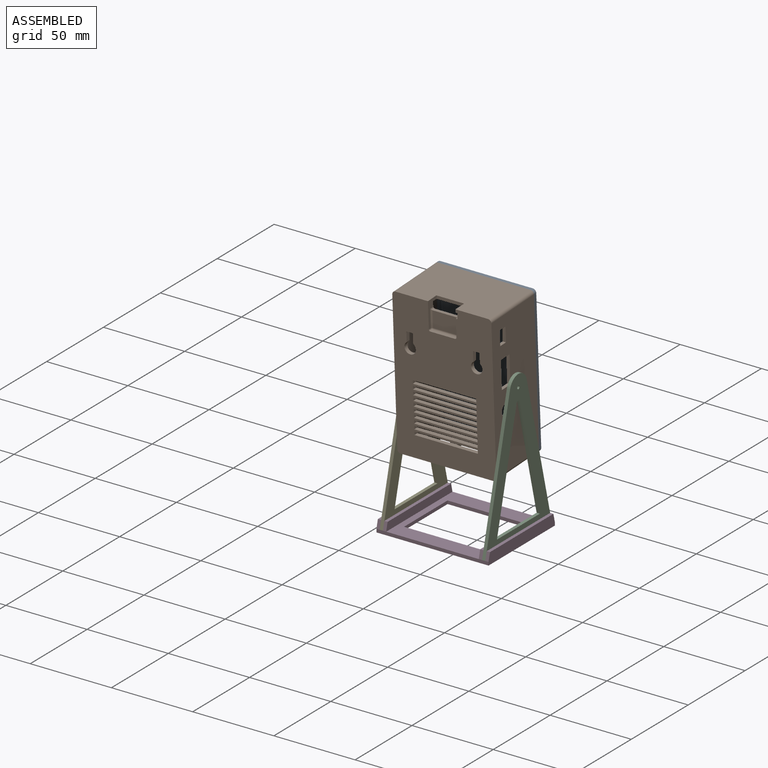
[diagram: assembled view]
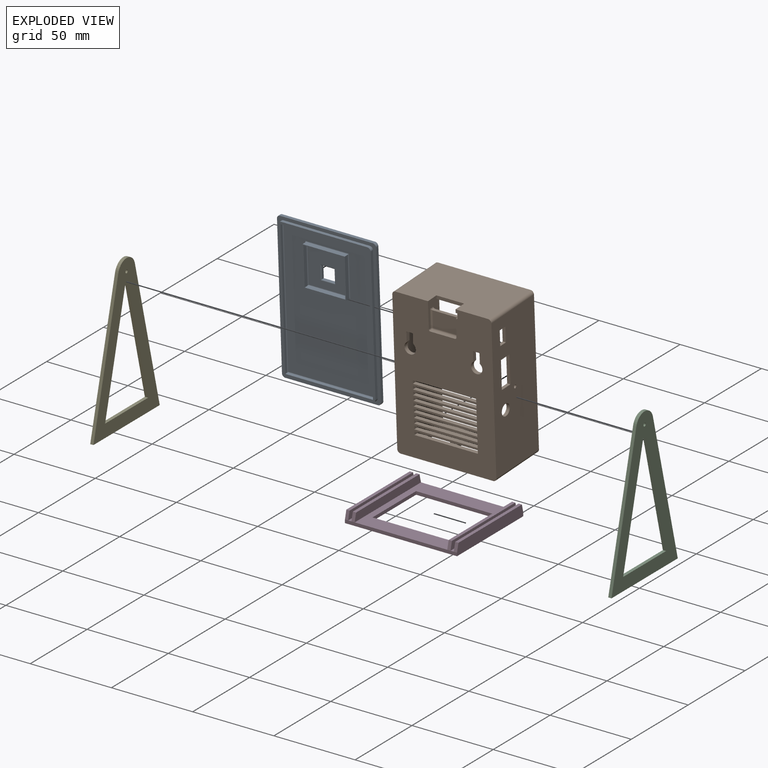
[diagram: exploded view]
GUIDED TOUR — MATED ASSEMBLY (Onshape document 2ee010996fcdbbe0177ab9b4, AutoMate assembly 2ee010996fcdbbe0177ab9b4_f6006d8d229a55cab458e981_14f6361f8441240540741fac_default)

This assembly has 5 components, labeled P0..P4 below (a component is one placed occurrence of a part; the same part can appear more than once), held together by 4 mates. A mate is a constraint between two components; its type names the relative motion it leaves free:
  FASTENED — locks the two components together rigidly (no relative motion),
  REVOLUTE — leaves rotation about the listed axis free (a hinge).
Axis/direction vectors are unit vectors and 'through' points are millimeter coordinates, both in the assembly's world frame.

MATES
  1. REVOLUTE "Revolute 1": P1 <-> P4, axis (-1.000, 0.000, 0.000) through (110.18, -246.69, 141.87) mm
  2. FASTENED "Fastened 3": P2 <-> P3, direction (1.000, 0.000, 0.000) through (172.18, -275.83, 56.39) mm
  3. FASTENED "Fastened 1": P1 <-> P0, direction (-1.000, 0.000, 0.000) through (140.68, -230.16, 186.75) mm
  4. FASTENED "Fastened 2": P3 <-> P4, direction (1.000, 0.000, 0.000) through (109.18, -275.83, 56.39) mm

ASSEMBLY ORDER
  1. P1 — the base component [order verified]
  2. P0 [order verified]
  3. P3 [order verified]
  4. P2 [order verified]
  5. P4 [order verified]
Order-tag legend:
  [order verified] — this step's position reverses a verified removal order: the component was checked to insert without passing through the ones already placed.

Of the 5 components, 1 carries the full construction recipe — the FeatureScript program that regenerates the part's solid from scratch; the rest are supplied as boundary geometry only.
Each toured component is shown spotlighted twice — in the assembled view, then in the exploded view, where a leader line traces a displaced component back to its assembled socket (saturated green if recipe-attached, orange if geometry-only; every other component desaturated gray) — followed by its recipe or geometry summary and the mates that hold it.
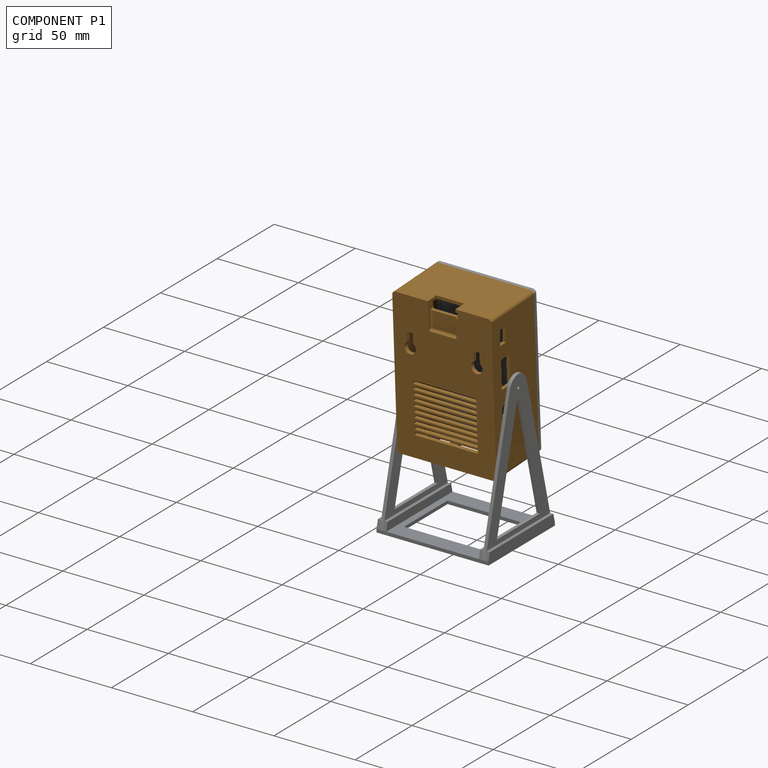
[diagram: component P1 — assembled]
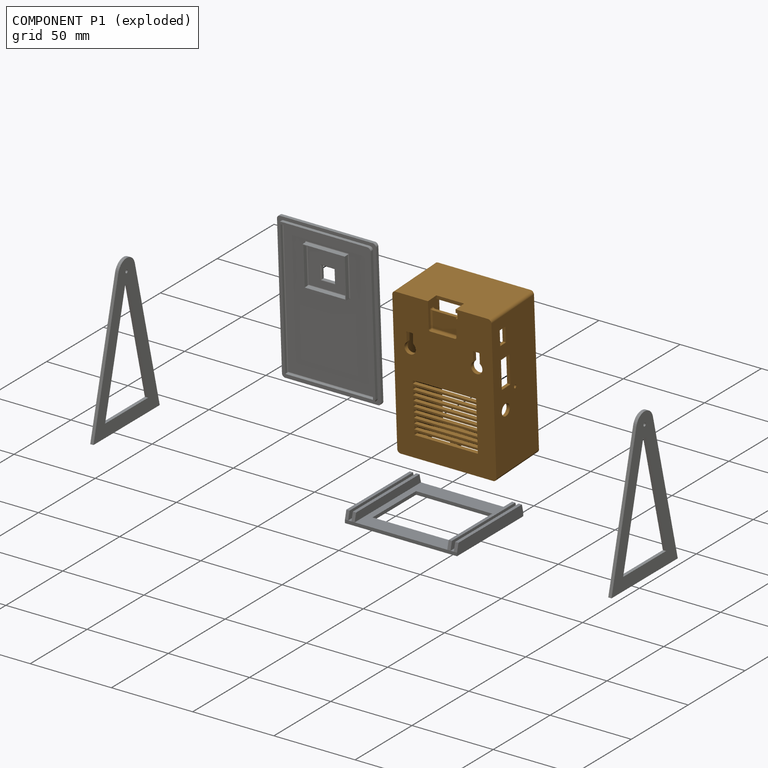
[diagram: component P1 — exploded]
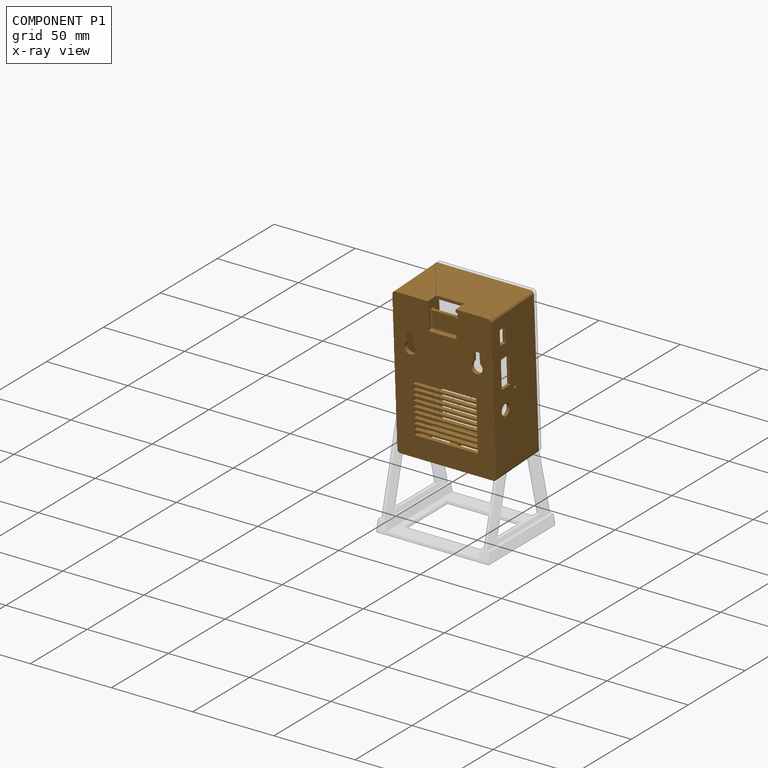
[diagram: component P1 — x-ray view]
COMPONENT P1 — geometry summary (no construction recipe available for this part):
  bounding box: 92.0 x 61.0 x 37.5 mm
  B-rep topology: 1 solid, 119 faces, 692 edges
  volume: 30431 mm^3 (14% of its bounding box)
Held by: REVOLUTE mate "Revolute 1" to P4; FASTENED mate "Fastened 1" to P0.
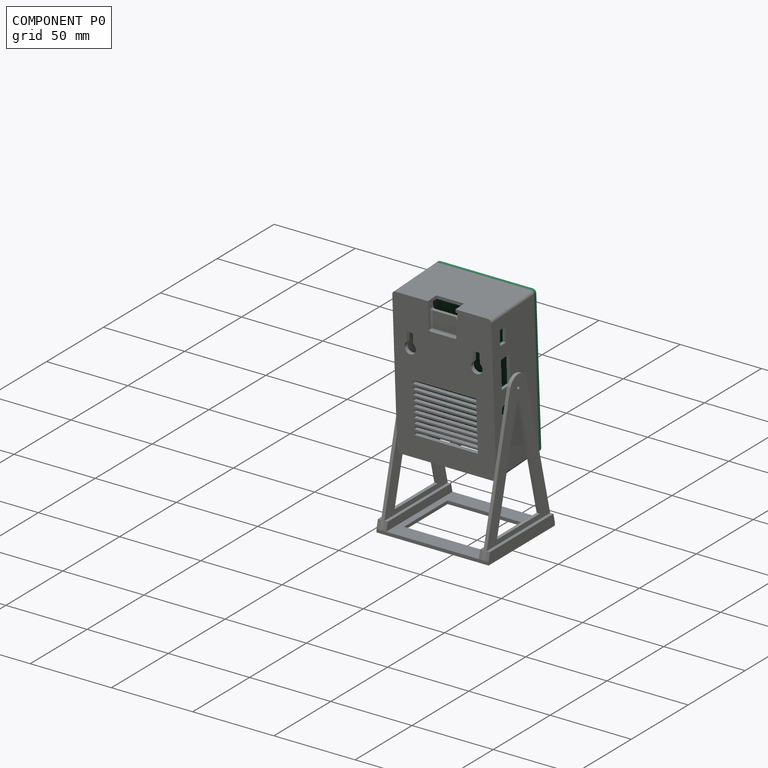
[diagram: component P0 — assembled]
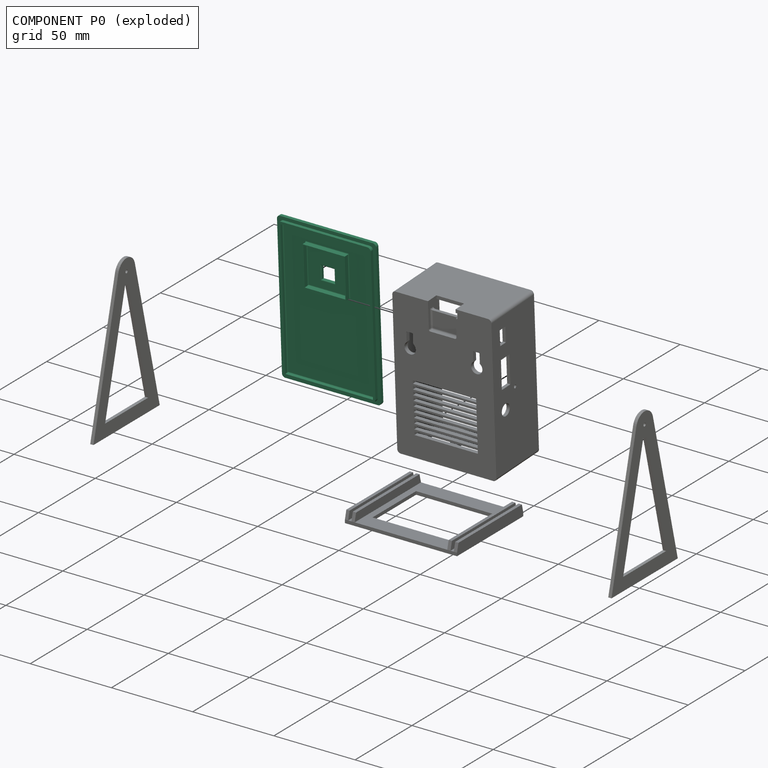
[diagram: component P0 — exploded]
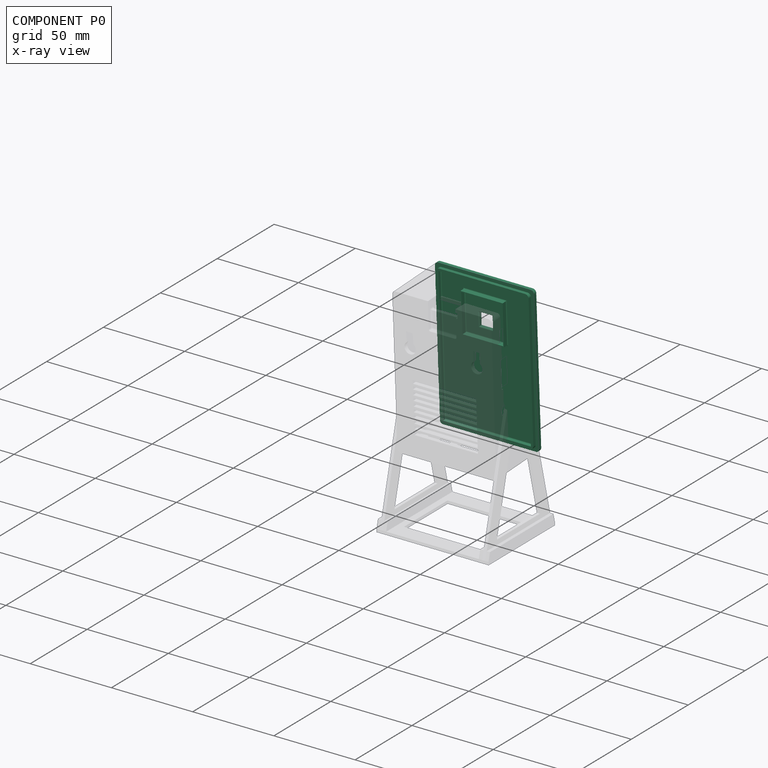
[diagram: component P0 — x-ray view]
COMPONENT P0 — recipe-attached (CADFS 00143966, mesh-verified: the recipe's output STEP matches this component's geometry to below the mesh-comparison resolution (tessellation chordal tolerance ~0.166 mm)).
Held by: FASTENED mate "Fastened 1" to P1.
Construction recipe (FeatureScript — the CAD program that rebuilds this solid; sketch coordinates are in the units given by the * unit suffixes, e.g. mm):

FeatureScript 1511;
import(path : "onshape/std/geometry.fs", version : "1511.0");
import(path : "onshape/std/common.fs", version : "1511.0");
const mm = millimeter;
const VERTEX = EntityType.VERTEX;
const EDGE = EntityType.EDGE;
const FACE = EntityType.FACE;
const BODY = EntityType.BODY;
function v(x, y){return vector(x, y);}
function OD(order){return orderDisambiguation(order);}
function OSD(set){return originalSetDisambiguation(set);}
function TD(topology){return topologyDisambiguation(topology);}
function TDD(query){return trueDependencyDisambiguation(query);}
function sQuery(a, b, c) {return sketchEntityQuery(a, b, c);}

annotation { "Feature Type Name" : "Feature", "Feature Type Description" : "" }
export const myFeature = defineFeature(function(context is Context, id is Id, definition is map)
    precondition{}
    {
        {
            var Q0;
            Q0=qCreatedBy(makeId("Top.planeOp"),FACE);
            var sketch = newSketch(context, id + "F0", { "sketchPlane" : qUnion([Q0])});
            skLineSegment(sketch, "E0", {"start": v(-28.5, 0) * mm, "end": v(-28.5, 42) * mm});
            skLineSegment(sketch, "E1", {"start": v(-26.5, 44) * mm, "end": v(26.5, 44) * mm});
            skLineSegment(sketch, "E2", {"start": v(28.5, 42) * mm, "end": v(28.5, 0) * mm});
            skLineSegment(sketch, "E3", {"start": v(28.5, 0) * mm, "end": v(28.5, -42) * mm});
            skLineSegment(sketch, "E4", {"start": v(26.5, -44) * mm, "end": v(-26.5, -44) * mm});
            skLineSegment(sketch, "E5", {"start": v(-28.5, -42) * mm, "end": v(-28.5, 0) * mm});
            skLineSegment(sketch, "E6", {"start": v(0, 0) * mm, "end": v(28.5, 0) * mm, "construction": true});
            skLineSegment(sketch, "E7", {"start": v(0, 0) * mm, "end": v(-28.5, 0) * mm, "construction": true});
            skPoint(sketch, "E8.visualSharp", {"position": v(-28.5, 44) * mm});
            skArc(sketch, "E8.filletArc", {"start": v(-26.5, 44) * mm, "mid": v(-27.91, 43.41) * mm, "end": v(-28.5, 42) * mm});
            skPoint(sketch, "E9.visualSharp", {"position": v(28.5, 44) * mm});
            skArc(sketch, "E9.filletArc", {"start": v(28.5, 42) * mm, "mid": v(27.91, 43.41) * mm, "end": v(26.5, 44) * mm});
            skPoint(sketch, "E10.visualSharp", {"position": v(28.5, -44) * mm});
            skArc(sketch, "E10.filletArc", {"start": v(26.5, -44) * mm, "mid": v(27.91, -43.41) * mm, "end": v(28.5, -42) * mm});
            skPoint(sketch, "E11.visualSharp", {"position": v(-28.5, -44) * mm});
            skArc(sketch, "E11.filletArc", {"start": v(-28.5, -42) * mm, "mid": v(-27.91, -43.41) * mm, "end": v(-26.5, -44) * mm});
            skLineSegment(sketch, "E12", {"start": v(-30.5, 0) * mm, "end": v(-30.5, 44) * mm});
            skLineSegment(sketch, "E13", {"start": v(-28.5, 46) * mm, "end": v(28.5, 46) * mm});
            skLineSegment(sketch, "E14", {"start": v(30.5, 44) * mm, "end": v(30.5, 0) * mm});
            skLineSegment(sketch, "E15", {"start": v(30.5, 0) * mm, "end": v(30.5, -44) * mm});
            skLineSegment(sketch, "E16", {"start": v(28.5, -46) * mm, "end": v(-28.5, -46) * mm});
            skLineSegment(sketch, "E17", {"start": v(-30.5, -44) * mm, "end": v(-30.5, 0) * mm});
            skPoint(sketch, "E18.visualSharp", {"position": v(-30.5, 46) * mm});
            skArc(sketch, "E18.filletArc", {"start": v(-28.5, 46) * mm, "mid": v(-29.91, 45.41) * mm, "end": v(-30.5, 44) * mm});
            skPoint(sketch, "E19.visualSharp", {"position": v(30.5, 46) * mm});
            skArc(sketch, "E19.filletArc", {"start": v(30.5, 44) * mm, "mid": v(29.91, 45.41) * mm, "end": v(28.5, 46) * mm});
            skPoint(sketch, "E20.visualSharp", {"position": v(30.5, -46) * mm});
            skArc(sketch, "E20.filletArc", {"start": v(28.5, -46) * mm, "mid": v(29.91, -45.41) * mm, "end": v(30.5, -44) * mm});
            skPoint(sketch, "E21.visualSharp", {"position": v(-30.5, -46) * mm});
            skArc(sketch, "E21.filletArc", {"start": v(-30.5, -44) * mm, "mid": v(-29.91, -45.41) * mm, "end": v(-28.5, -46) * mm});
            skLineSegment(sketch, "E22", {"start": v(0, 0) * mm, "end": v(0, -46) * mm, "construction": true});
            skPoint(sketch, "E23.cornerSnap0", {"position": v(-29.91, -45.41) * mm});
            skLineSegment(sketch, "E24.bottom", {"start": v(-27, 42.5) * mm, "end": v(27, 42.5) * mm});
            skLineSegment(sketch, "E24.top", {"start": v(-27, -42.5) * mm, "end": v(27, -42.5) * mm});
            skLineSegment(sketch, "E24.left", {"start": v(-27, 42.5) * mm, "end": v(-27, -42.5) * mm});
            skLineSegment(sketch, "E24.right", {"start": v(27, 42.5) * mm, "end": v(27, -42.5) * mm});
            skPoint(sketch, "E24.middle", {"position": v(0, 0) * mm});
            skLineSegment(sketch, "E25", {"start": v(0, 0) * mm, "end": v(0, 46) * mm, "construction": true});
            skSolve(sketch);
        }
        {
            var Q0;
            Q0=makeQuery(id+"F0.imprint","IMPRINT",FACE,{"disambiguationData":[TD([[makeQuery(id+"F0.imprint","IMPRINT",EDGE,{"derivedFrom":sQuery(id+"F0.wireOp",EDGE,"E0")}),1.0]])]});
            var Q1;
            Q1=makeQuery(id+"F0.imprint","IMPRINT",FACE,{"disambiguationData":[TD([[makeQuery(id+"F0.imprint","IMPRINT",EDGE,{"derivedFrom":sQuery(id+"F0.wireOp",EDGE,"E0")}),-1.0]])]});
            var Q2;
            Q2=makeQuery(id+"F0.imprint","IMPRINT",FACE,{"disambiguationData":[TD([[makeQuery(id+"F0.imprint","IMPRINT",EDGE,{"derivedFrom":sQuery(id+"F0.wireOp",EDGE,"E24.bottom")}),-1.0]])]});
            extrude(context, id + "F1", {"entities" : qUnion([Q0, Q1, Q2]), "oppositeDirection" : true, "depth" : 2 * mm});
        }
        {
            var Q0;
            Q0=makeQuery(id+"F0.imprint","IMPRINT",FACE,{"disambiguationData":[TD([[makeQuery(id+"F0.imprint","IMPRINT",EDGE,{"derivedFrom":sQuery(id+"F0.wireOp",EDGE,"E0")}),-1.0]])]});
            extrude(context, id + "F2", {"entities" : qUnion([Q0]), "operationType" : NewBodyOperationType.ADD, "depth" : 2 * mm});
        }
        {
            var Q0;
            Q0=qCreatedBy(makeId("Top.planeOp"),FACE);
            var sketch = newSketch(context, id + "F3", { "sketchPlane" : qUnion([Q0])});
            skLineSegment(sketch, "E26", {"start": v(-28.5, 0) * mm, "end": v(-28.5, 42) * mm});
            skLineSegment(sketch, "E27", {"start": v(-26.5, 44) * mm, "end": v(26.5, 44) * mm});
            skLineSegment(sketch, "E28", {"start": v(28.5, 42) * mm, "end": v(28.5, 0) * mm});
            skLineSegment(sketch, "E29", {"start": v(28.5, 0) * mm, "end": v(28.5, -42) * mm});
            skLineSegment(sketch, "E30", {"start": v(26.5, -44) * mm, "end": v(-26.5, -44) * mm});
            skLineSegment(sketch, "E31", {"start": v(-28.5, -42) * mm, "end": v(-28.5, 0) * mm});
            skLineSegment(sketch, "E32", {"start": v(0, 0) * mm, "end": v(28.5, 0) * mm, "construction": true});
            skLineSegment(sketch, "E33", {"start": v(0, 0) * mm, "end": v(-28.5, 0) * mm, "construction": true});
            skPoint(sketch, "E34.visualSharp", {"position": v(-28.5, 44) * mm});
            skArc(sketch, "E34.filletArc", {"start": v(-26.5, 44) * mm, "mid": v(-27.91, 43.41) * mm, "end": v(-28.5, 42) * mm});
            skPoint(sketch, "E35.visualSharp", {"position": v(28.5, 44) * mm});
            skArc(sketch, "E35.filletArc", {"start": v(28.5, 42) * mm, "mid": v(27.91, 43.41) * mm, "end": v(26.5, 44) * mm});
            skPoint(sketch, "E36.visualSharp", {"position": v(28.5, -44) * mm});
            skArc(sketch, "E36.filletArc", {"start": v(26.5, -44) * mm, "mid": v(27.91, -43.41) * mm, "end": v(28.5, -42) * mm});
            skPoint(sketch, "E37.visualSharp", {"position": v(-28.5, -44) * mm});
            skArc(sketch, "E37.filletArc", {"start": v(-28.5, -42) * mm, "mid": v(-27.91, -43.41) * mm, "end": v(-26.5, -44) * mm});
            skLineSegment(sketch, "E38", {"start": v(-30.5, 0) * mm, "end": v(-30.5, 44) * mm});
            skLineSegment(sketch, "E39", {"start": v(-28.5, 46) * mm, "end": v(28.5, 46) * mm});
            skLineSegment(sketch, "E40", {"start": v(30.5, 44) * mm, "end": v(30.5, 0) * mm});
            skLineSegment(sketch, "E41", {"start": v(30.5, 0) * mm, "end": v(30.5, -44) * mm});
            skLineSegment(sketch, "E42", {"start": v(28.5, -46) * mm, "end": v(-28.5, -46) * mm});
            skLineSegment(sketch, "E43", {"start": v(-30.5, -44) * mm, "end": v(-30.5, 0) * mm});
            skPoint(sketch, "E44.visualSharp", {"position": v(-30.5, 46) * mm});
            skArc(sketch, "E44.filletArc", {"start": v(-28.5, 46) * mm, "mid": v(-29.91, 45.41) * mm, "end": v(-30.5, 44) * mm});
            skPoint(sketch, "E45.visualSharp", {"position": v(30.5, 46) * mm});
            skArc(sketch, "E45.filletArc", {"start": v(30.5, 44) * mm, "mid": v(29.91, 45.41) * mm, "end": v(28.5, 46) * mm});
            skPoint(sketch, "E46.visualSharp", {"position": v(30.5, -46) * mm});
            skArc(sketch, "E46.filletArc", {"start": v(28.5, -46) * mm, "mid": v(29.91, -45.41) * mm, "end": v(30.5, -44) * mm});
            skPoint(sketch, "E47.visualSharp", {"position": v(-30.5, -46) * mm});
            skArc(sketch, "E47.filletArc", {"start": v(-30.5, -44) * mm, "mid": v(-29.91, -45.41) * mm, "end": v(-28.5, -46) * mm});
            skLineSegment(sketch, "E48", {"start": v(0, 0) * mm, "end": v(0, -46) * mm, "construction": true});
            skPoint(sketch, "E49.cornerSnap0", {"position": v(-29.91, -45.41) * mm});
            skLineSegment(sketch, "E50.bottom", {"start": v(-27, 42.5) * mm, "end": v(27, 42.5) * mm});
            skLineSegment(sketch, "E50.top", {"start": v(-27, -42.5) * mm, "end": v(27, -42.5) * mm});
            skLineSegment(sketch, "E50.left", {"start": v(-27, 42.5) * mm, "end": v(-27, -42.5) * mm});
            skLineSegment(sketch, "E50.right", {"start": v(27, 42.5) * mm, "end": v(27, -42.5) * mm});
            skPoint(sketch, "E50.middle", {"position": v(0, 0) * mm});
            skLineSegment(sketch, "E51", {"start": v(0, 0) * mm, "end": v(0, 46) * mm, "construction": true});
            skLineSegment(sketch, "E52.bottom", {"start": v(4.05, 16.4) * mm, "end": v(-4.05, 16.4) * mm});
            skLineSegment(sketch, "E52.top", {"start": v(4.05, 24.5) * mm, "end": v(-4.05, 24.5) * mm});
            skLineSegment(sketch, "E52.left", {"start": v(4.05, 16.4) * mm, "end": v(4.05, 24.5) * mm});
            skLineSegment(sketch, "E52.right", {"start": v(-4.05, 16.4) * mm, "end": v(-4.05, 24.5) * mm});
            skPoint(sketch, "E52.middle", {"position": v(0, 20.45) * mm});
            skLineSegment(sketch, "E53.bottom", {"start": v(-10.5, 20.45) * mm, "end": v(10.5, 20.45) * mm});
            skLineSegment(sketch, "E53.top", {"start": v(-10.5, 32.95) * mm, "end": v(10.5, 32.95) * mm});
            skLineSegment(sketch, "E53.left", {"start": v(-10.5, 20.45) * mm, "end": v(-10.5, 32.95) * mm});
            skLineSegment(sketch, "E53.right", {"start": v(10.5, 20.45) * mm, "end": v(10.5, 32.95) * mm});
            skPoint(sketch, "E53.middle", {"position": v(0, 26.7) * mm});
            skLineSegment(sketch, "E54.bottom", {"start": v(-12.5, 34.95) * mm, "end": v(12.5, 34.95) * mm});
            skLineSegment(sketch, "E54.top", {"start": v(-12.5, 10.95) * mm, "end": v(12.5, 10.95) * mm});
            skLineSegment(sketch, "E54.left", {"start": v(-12.5, 34.95) * mm, "end": v(-12.5, 10.95) * mm});
            skLineSegment(sketch, "E54.right", {"start": v(12.5, 34.95) * mm, "end": v(12.5, 10.95) * mm});
            skPoint(sketch, "E54.middle", {"position": v(0, 22.95) * mm});
            skLineSegment(sketch, "E55.bottom", {"start": v(-13, 35.45) * mm, "end": v(13, 35.45) * mm});
            skLineSegment(sketch, "E55.top", {"start": v(-13, 10.45) * mm, "end": v(13, 10.45) * mm});
            skLineSegment(sketch, "E55.left", {"start": v(-13, 35.45) * mm, "end": v(-13, 10.45) * mm});
            skLineSegment(sketch, "E55.right", {"start": v(13, 35.45) * mm, "end": v(13, 10.45) * mm});
            skSolve(sketch);
        }
        {
            var Q0;
            Q0=makeQuery(id+"F3.imprint","IMPRINT",FACE,{"disambiguationData":[TD([[makeQuery(id+"F3.imprint","IMPRINT",EDGE,{"derivedFrom":sQuery(id+"F3.wireOp",EDGE,"E54.bottom")}),1.0]])]});
            extrude(context, id + "F4", {"entities" : qUnion([Q0]), "operationType" : NewBodyOperationType.ADD, "depth" : 3 * mm});
        }
        {
            var Q0;
            {var subQ0=sQuery(id+"F3.wireOp",EDGE,"E52.bottom");Q0=makeQuery(id+"F3.imprint","IMPRINT",FACE,{"disambiguationData":[TD([[makeQuery(id+"F3.imprint","IMPRINT",EDGE,{"derivedFrom":subQ0}),-1.0]])]});}
            var Q1;
            {var subQ0=sQuery(id+"F3.wireOp",EDGE,"E52.top");Q1=makeQuery(id+"F3.imprint","IMPRINT",FACE,{"disambiguationData":[TD([[makeQuery(id+"F3.imprint","IMPRINT",EDGE,{"derivedFrom":subQ0}),1.0]])]});}
            extrude(context, id + "F5", {"entities" : qUnion([Q0, Q1]), "operationType" : NewBodyOperationType.REMOVE, "endBound" : BoundingType.UP_TO_NEXT, "oppositeDirection" : true, "depth" : 25 * mm});
        }
        {
            var Q0;
            Q0=makeQuery(id+"F4.boolean.opBoolean","SPLIT",FACE,{"disambiguationData":[TD([makeQuery(id+"F4.opExtrude","SWEPT_FACE",FACE,{"disambiguationData":[OSD([sQuery(id+"F3.wireOp",EDGE,"E54.bottom")])]})])],"derivedFrom":makeQuery(id+"F2.boolean.opBoolean","SPLIT",FACE,{"disambiguationData":[TD([makeQuery(id+"F2.opExtrude","SWEPT_FACE",FACE,{"disambiguationData":[OSD([sQuery(id+"F0.wireOp",EDGE,"E24.bottom")])]})])],"derivedFrom":makeQuery(id+"F1.opExtrude","CAP_FACE",FACE,{"disambiguationData":[OSD([sQuery(id+"F0.wireOp",EDGE,"E12"),sQuery(id+"F0.wireOp",EDGE,"E13"),sQuery(id+"F0.wireOp",EDGE,"E14"),sQuery(id+"F0.wireOp",EDGE,"E15"),sQuery(id+"F0.wireOp",EDGE,"E16"),sQuery(id+"F0.wireOp",EDGE,"E17"),sQuery(id+"F0.wireOp",EDGE,"E18.filletArc"),sQuery(id+"F0.wireOp",EDGE,"E19.filletArc"),sQuery(id+"F0.wireOp",EDGE,"E20.filletArc"),sQuery(id+"F0.wireOp",EDGE,"E21.filletArc")])],"isStart":true})})});
            var Q1;
            {var subQ3=makeQuery(id+"F2.opExtrude","SWEPT_FACE",FACE,{"disambiguationData":[OSD([sQuery(id+"F0.wireOp",EDGE,"E24.bottom")])]});Q1=makeQuery(id+"F4.boolean.opBoolean","SPLIT",FACE,{"disambiguationData":[TD([subQ3])],"derivedFrom":makeQuery(id+"F2.boolean.opBoolean","SPLIT",FACE,{"disambiguationData":[TD([subQ3])],"derivedFrom":makeQuery(id+"F1.opExtrude","CAP_FACE",FACE,{"disambiguationData":[OSD([sQuery(id+"F0.wireOp",EDGE,"E12"),sQuery(id+"F0.wireOp",EDGE,"E13"),sQuery(id+"F0.wireOp",EDGE,"E14"),sQuery(id+"F0.wireOp",EDGE,"E15"),sQuery(id+"F0.wireOp",EDGE,"E16"),sQuery(id+"F0.wireOp",EDGE,"E17"),sQuery(id+"F0.wireOp",EDGE,"E18.filletArc"),sQuery(id+"F0.wireOp",EDGE,"E19.filletArc"),sQuery(id+"F0.wireOp",EDGE,"E20.filletArc"),sQuery(id+"F0.wireOp",EDGE,"E21.filletArc")])],"isStart":true})})});}
            fillet(context, id + "F6", {"entities" : qUnion([Q0, Q1]), "radius" : .5 * mm, "tangentPropagation" : true, "allowEdgeOverflow" : false});
        }
    });
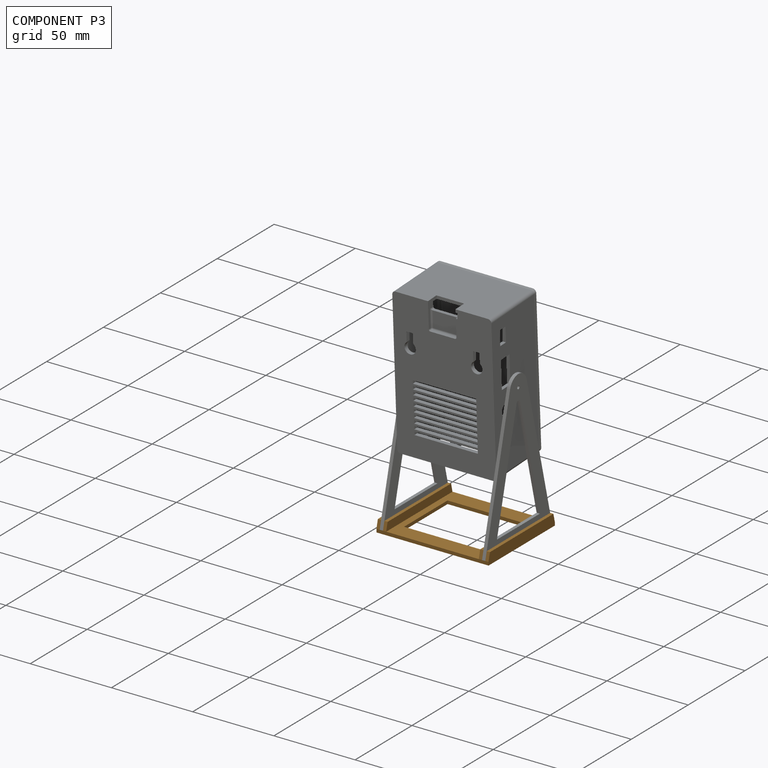
[diagram: component P3 — assembled]
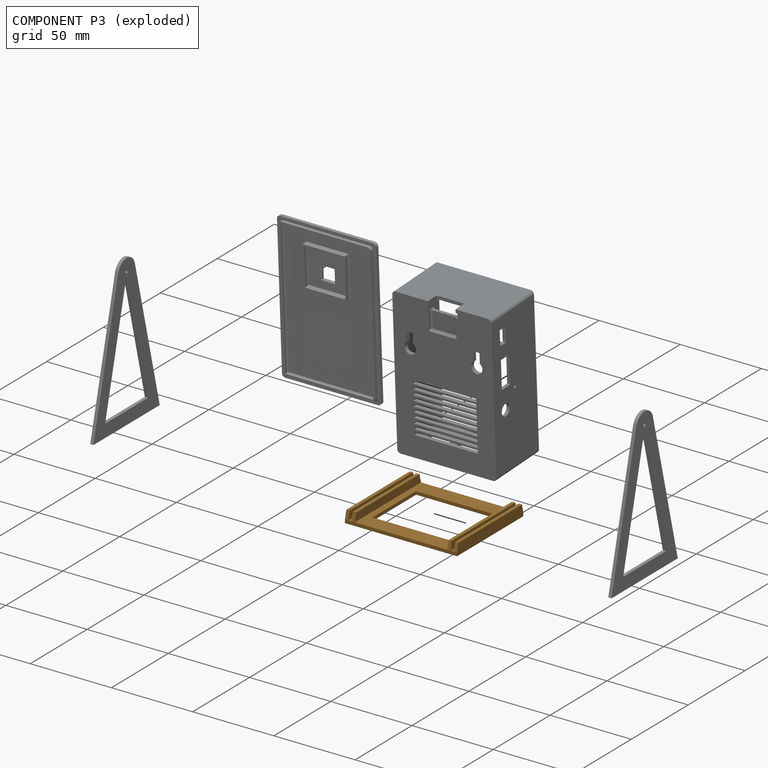
[diagram: component P3 — exploded]
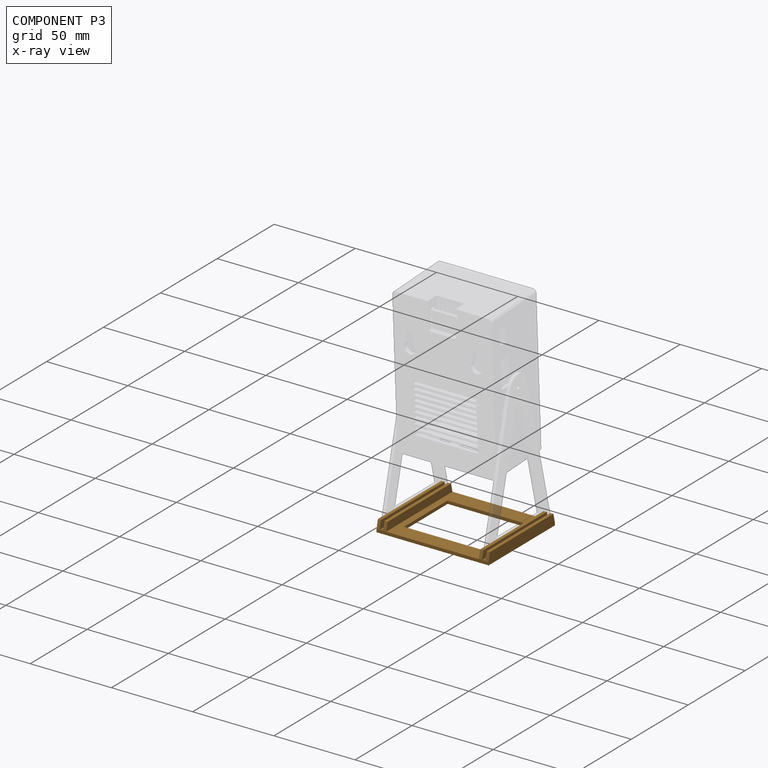
[diagram: component P3 — x-ray view]
COMPONENT P3 — geometry summary (no construction recipe available for this part):
  bounding box: 69.0 x 58.3 x 7.0 mm
  B-rep topology: 1 solid, 30 faces, 144 edges
  volume: 6572 mm^3 (23% of its bounding box)
  symmetry: 2-fold rotationally symmetric about the y axis; mirror-symmetric across its x mid-plane, z mid-plane
Held by: FASTENED mate "Fastened 3" to P2; FASTENED mate "Fastened 2" to P4.
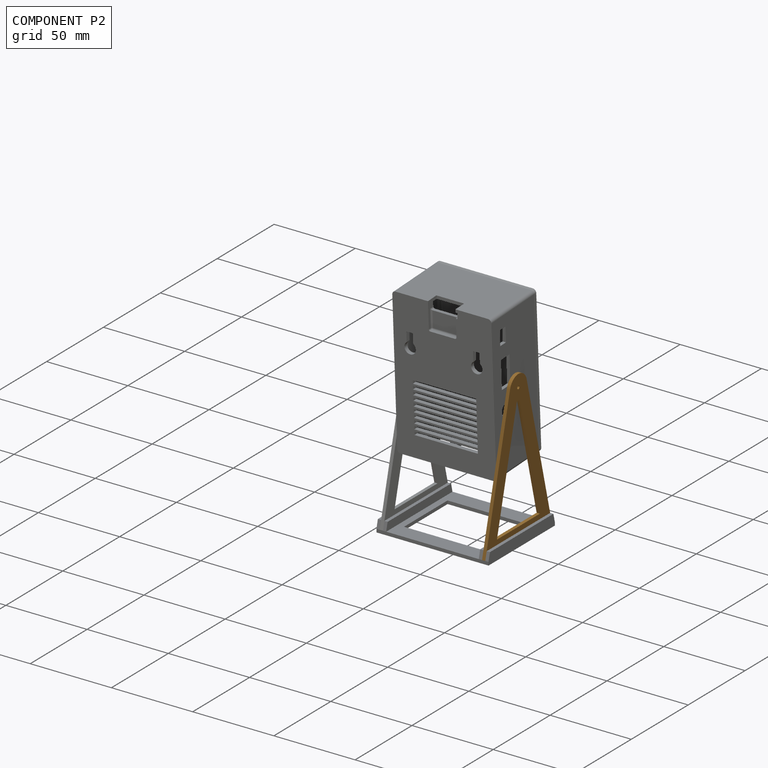
[diagram: component P2 — assembled]
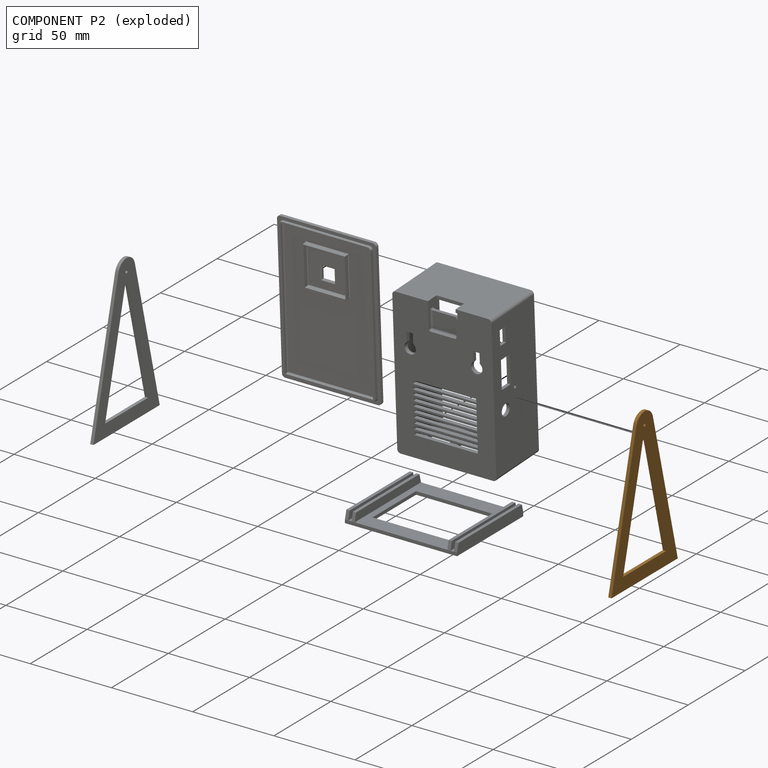
[diagram: component P2 — exploded]
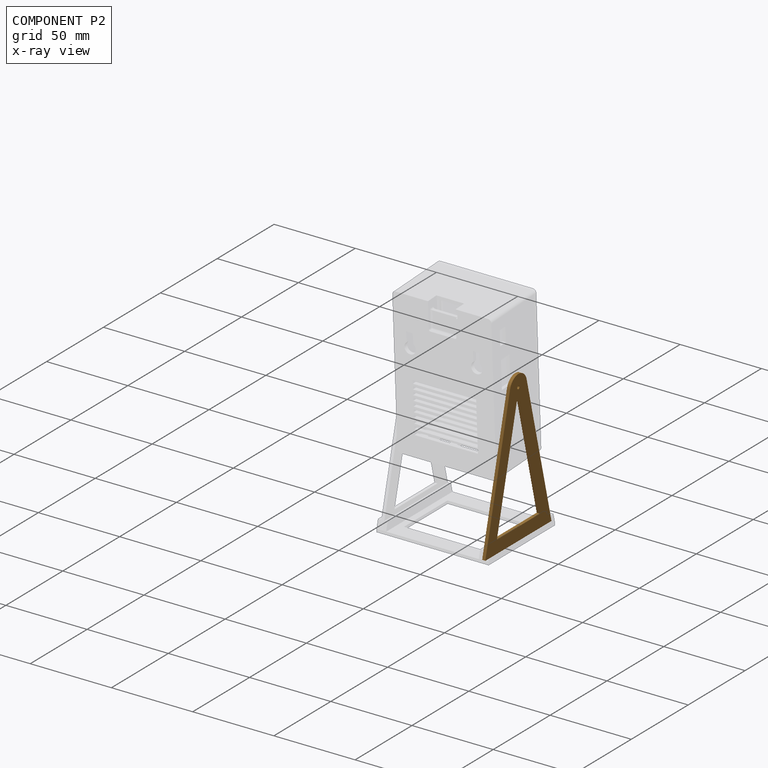
[diagram: component P2 — x-ray view]
COMPONENT P2 — geometry summary (no construction recipe available for this part):
  bounding box: 93.0 x 58.3 x 2.0 mm
  B-rep topology: 1 solid, 11 faces, 54 edges
  volume: 3640 mm^3 (34% of its bounding box)
  symmetry: 2-fold rotationally symmetric about the y axis; mirror-symmetric across its x mid-plane, z mid-plane
Held by: FASTENED mate "Fastened 3" to P3.
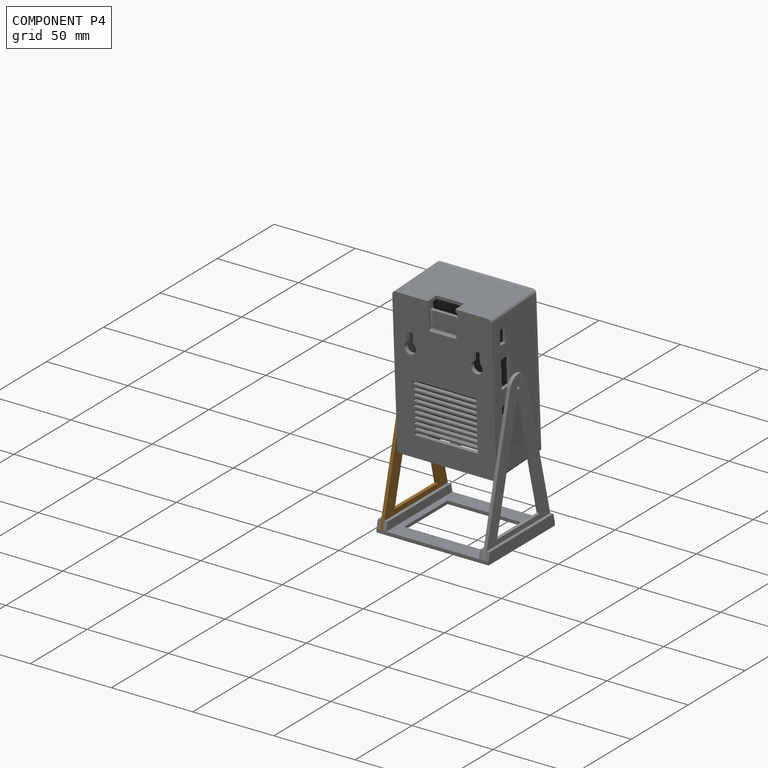
[diagram: component P4 — assembled]
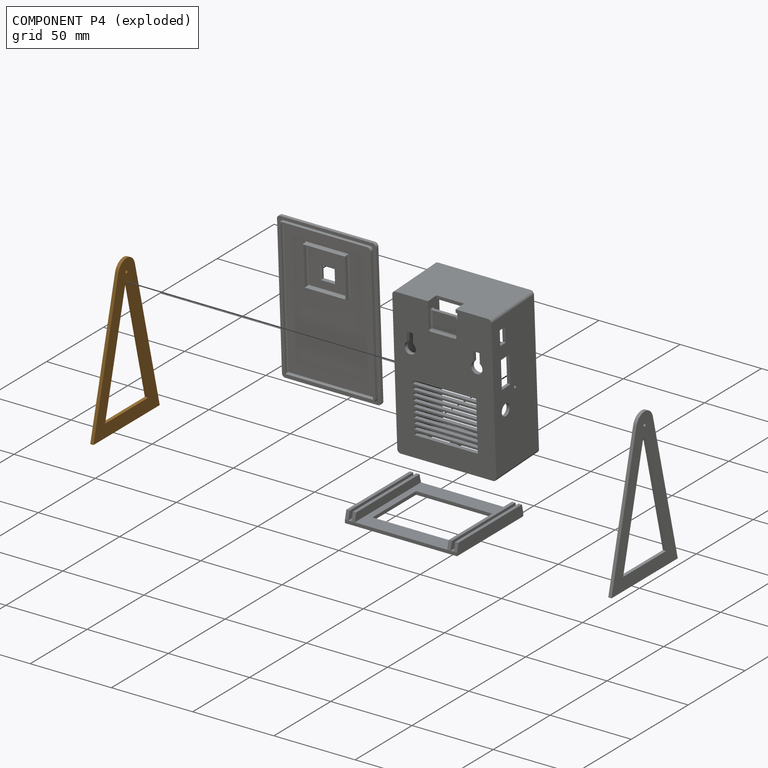
[diagram: component P4 — exploded]
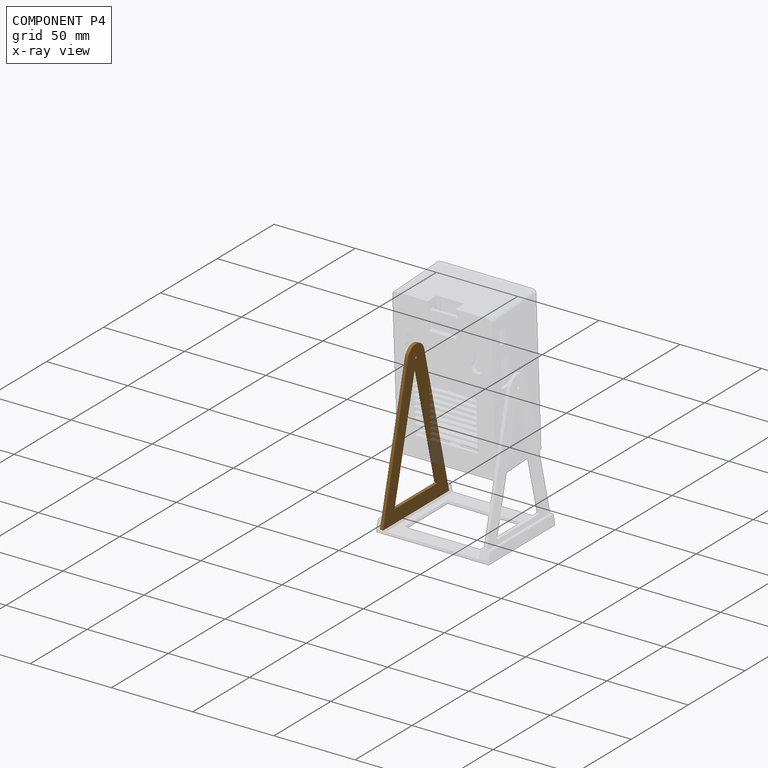
[diagram: component P4 — x-ray view]
COMPONENT P4 — geometry summary (no construction recipe available for this part):
  bounding box: 93.0 x 58.3 x 2.0 mm
  B-rep topology: 1 solid, 11 faces, 54 edges
  volume: 3640 mm^3 (34% of its bounding box)
  symmetry: 2-fold rotationally symmetric about the y axis; mirror-symmetric across its x mid-plane, z mid-plane
Held by: REVOLUTE mate "Revolute 1" to P1; FASTENED mate "Fastened 2" to P3.
PROVENANCE & LICENSES
Assembly (occurrences, transforms, mates, per-part STEP geometry): AutoMate dataset, Zenodo record 7776208, CC0.
Construction recipes: CADFS (HuggingFace VladPyatov/CADFS, CC-BY-4.0, layered over the ABC dataset), FeatureScript reconstruction programs keyed by ABC model id.
Join: ABC meta listings map ABC model id -> Onshape documentId; within a shared document, parts are matched by geometric signature (bounding-box dims + volume at 0.1% relative tolerance, exact B-rep face/solid counts).
Verification: 1 of this assembly's 5 components carries a recipe attachment, and every attachment is mesh-verified: the CADFS STEP and the AutoMate member STEP were compared as meshes in their shared local frame (symmetric sampled-point-to-mesh distance); worst across the 1 attachment: below the mesh-comparison resolution (tessellation chordal tolerance ~0.166 mm) on a 110 mm part.
Renders: orthographic iso camera (az 35 / el 25); the floor grid conveys scale (grid pitch printed in each image; no ruler). In the exploded view each component is displaced by its stored offset vector: the offsets alone carry the explosion direction (mate normal/axis signs are not orientation cues and do not encode it), and separation distances are assigned per mate-chain, not proportionally to assembly-order depth.
